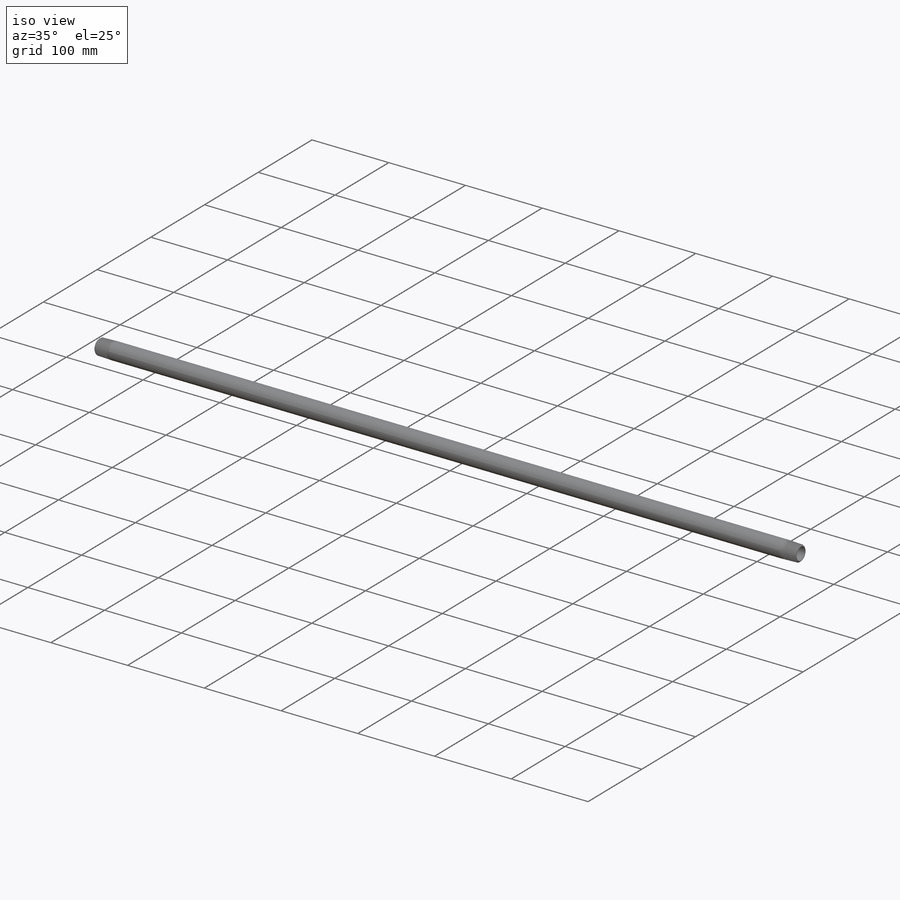
[diagram: iso view]
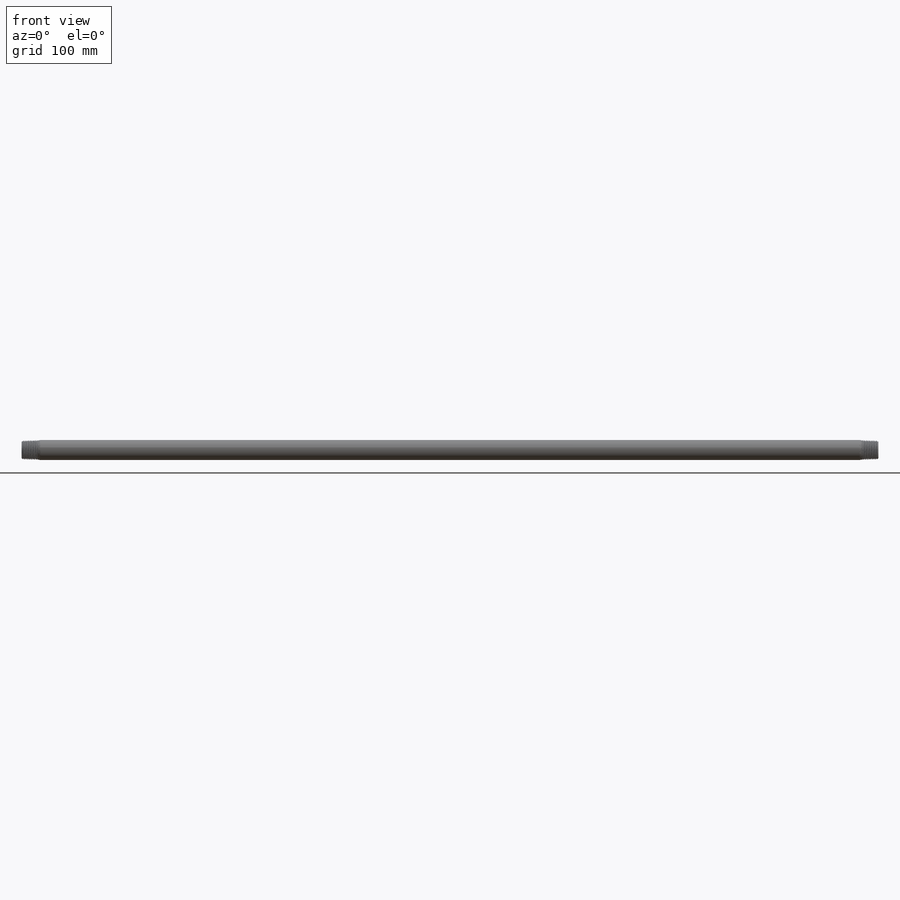
[diagram: front view]
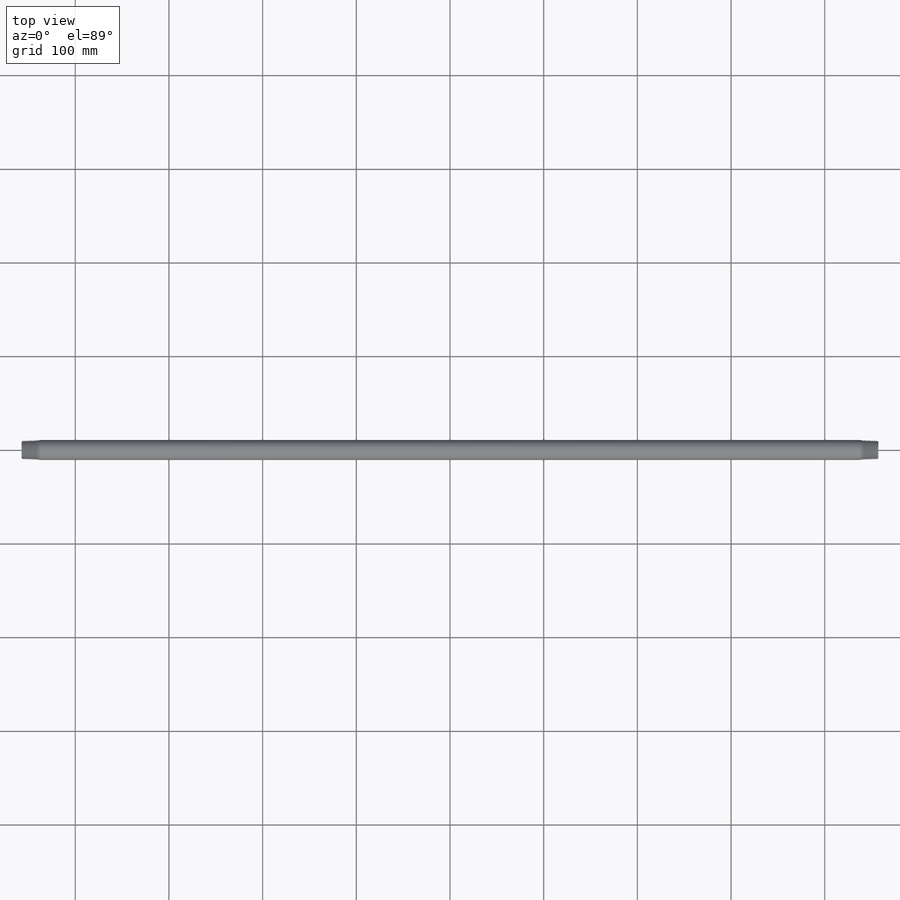
[diagram: top view]
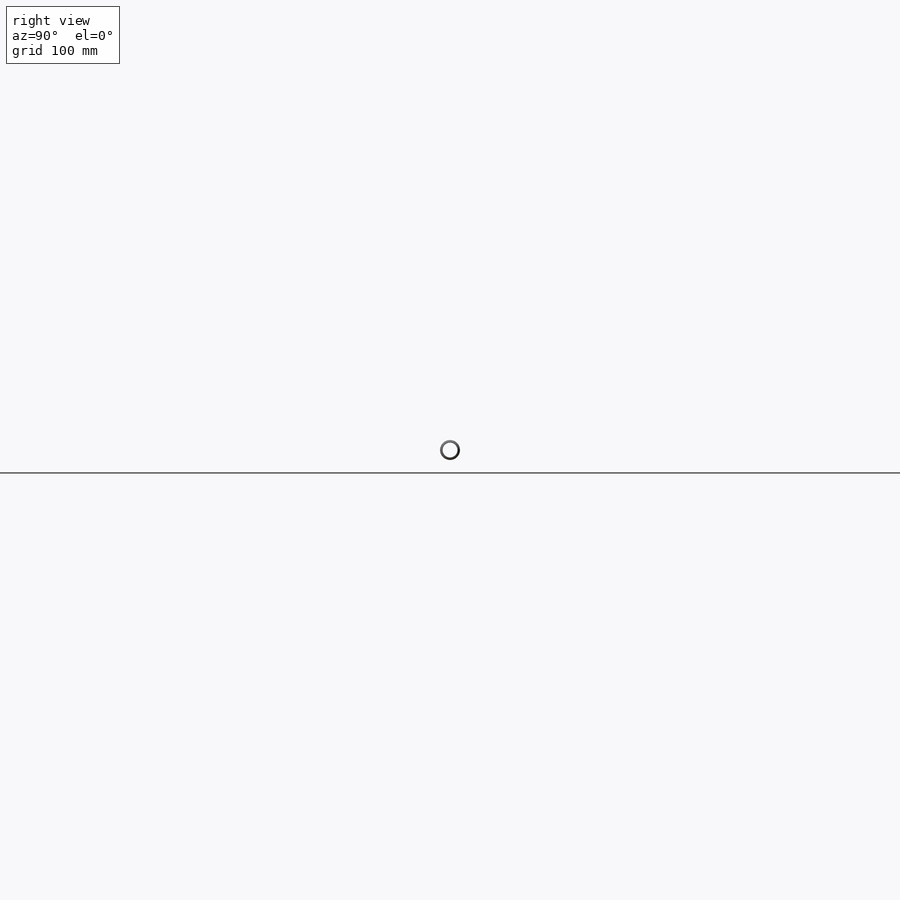
[diagram: right view]
SOLIDWORKS PART (.sldprt)
format: sldprt  version: not decoded by parser v0  size: 1,227,264 bytes
history: native  units: mm
features: sketch x6, plane x4, cut_extrude x2, material x1, helix x1, sweep x1, extrude x1, pattern_circular x1, boolean_combine x1 (+13 scaffold rows collapsed)
feature tree (31):
  scaffold x13  (default folders/planes/origin — collapsed)
  material  "Material <not specified>"
  sketch  "Sketch1"  dims[Pipe OD=21.336mm Length=914.4mm Wall Thickness=2.7686mm D6=2.54mm D7=5.0mm]
  plane  "Plane1"  Offset=13.55598mm L2=13.55598mm
  plane  "Plane2"  Offset=19.8501mm L4=19.8501mm
  plane  "Plane3"  Offset=13.55598mm
  plane  "Plane4"  Offset=19.8501mm
  sketch  "Sketch2"
  cut_extrude  "Extrude1"  [1 undecoded]
  sketch  "Sketch3"
  helix  "Helix/Spiral1"  Pitch=21.664386mm Height=21.664386mm
  sketch  "Sketch4"  dims[D1=~1.814286mm D2=~0.226786mm]
  sketch  "Sketch5"
  cut_extrude  "Extrude2"  [1 undecoded]
  sweep  "Cut-Sweep3"
  sketch  "Sketch6"  dims[D1=0.0mm]
  extrude  "Extrude3"  Depth=19.8501mm
  pattern_circular  "CirPattern1"  Count=2 Angle=180deg
  boolean_combine  "Combine1"
decode coverage: 6 of 13 modeling features carry decoded parameters
note: ~ marks probable driven/reference dimensions
note: 2 parameter values undecoded
note: suppression state not decoded; provenance and decode notes live in map.json
